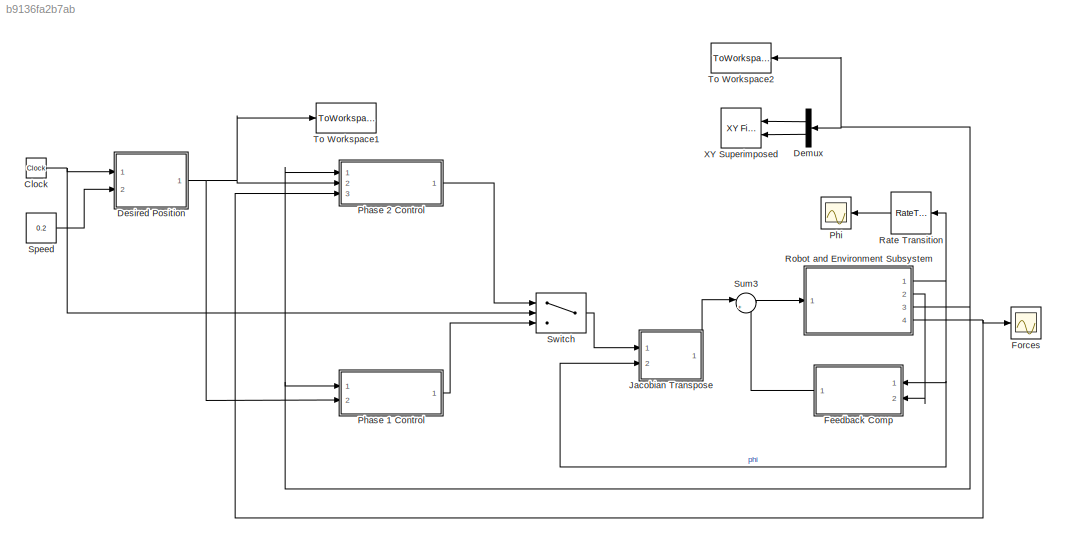
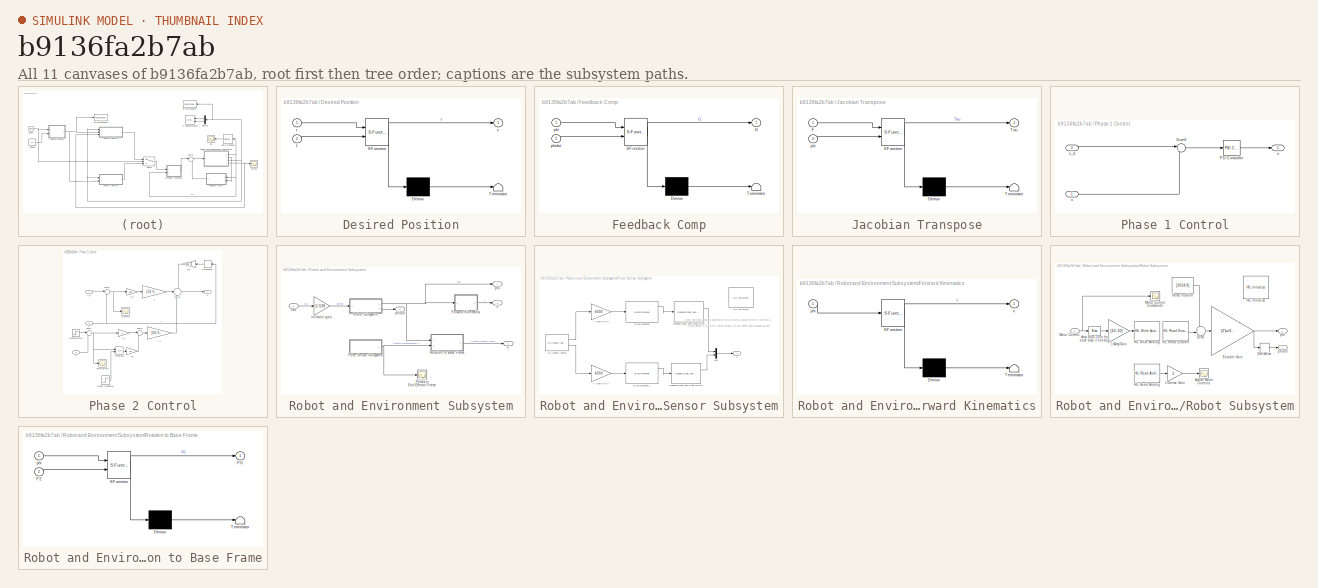
[diagram: thumbnail index - all 11 canvases of the model, root first then tree order]
MODEL slx_b9136fa2b7ab
KIND model
CONFIG AbsTol = auto
CONFIG EnableMultiTasking = on
CONFIG FixedStep = 0.002
CONFIG MaxStep = auto
CONFIG MinStep = auto
CONFIG RelTol = 1e-3
CONFIG SampleTimeConstraint = Unconstrained
CONFIG Solver = ode1
CONFIG SolverName = ode1
CONFIG StartTime = 0.0
CONFIG StopTime = 10
BLOCK [Clock] Clock
BLOCK [Demux] Demux
  DisplayOption = bar
  Outputs = 2
  Ports = [1, 2]
BLOCK [SubSystem] Desired Position
  ErrorFcn = Stateflow.Translate.translate
  PermitHierarchicalResolution = ExplicitOnly
  Ports = [2, 1]
  RequestExecContextInheritance = off
  SFBlockType = MATLAB Function
  TreatAsAtomicUnit = on
BLOCK [Demux] Desired Position/ Demux 
  Outputs = 1
  Ports = [1, 1]
BLOCK [S-Function] Desired Position/ SFunction 
  EnableBusSupport = on
  FunctionName = sf_sfun
  PortCounts = [2 2]
  Ports = [2, 2]
  SFcnIsStateOwnerBlock = off
  SFunctionDeploymentMode = off
  Tag = Stateflow S-Function hybrid_pi_control 1
BLOCK [Terminator] Desired Position/ Terminator 
BLOCK [Inport] Desired Position/f
  IconDisplay = Port number
  Port = 2
BLOCK [Inport] Desired Position/t
  IconDisplay = Port number
BLOCK [Outport] Desired Position/x
  IconDisplay = Port number
BLOCK [SubSystem] Feedback Comp
  ErrorFcn = Stateflow.Translate.translate
  PermitHierarchicalResolution = ExplicitOnly
  Ports = [2, 1]
  RequestExecContextInheritance = off
  SFBlockType = MATLAB Function
  TreatAsAtomicUnit = on
BLOCK [Demux] Feedback Comp/ Demux 
  Outputs = 1
  Ports = [1, 1]
BLOCK [S-Function] Feedback Comp/ SFunction 
  EnableBusSupport = on
  FunctionName = sf_sfun
  PortCounts = [2 2]
  Ports = [2, 2]
  SFcnIsStateOwnerBlock = off
  SFunctionDeploymentMode = off
  Tag = Stateflow S-Function hybrid_pi_control 4
BLOCK [Terminator] Feedback Comp/ Terminator 
BLOCK [Outport] Feedback Comp/G
  IconDisplay = Port number
BLOCK [Inport] Feedback Comp/phi
  IconDisplay = Port number
BLOCK [Inport] Feedback Comp/phidot
  IconDisplay = Port number
  Port = 2
BLOCK [Scope] Forces
  Floating = off
  NumInputPorts = 1
  Ports = [1]
  ScopeSpecificationString = Simulink.scopes.TimeScopeBlockCfg('CurrentConfiguration', extmgr.ConfigurationSet(extmgr.Configuration('Core','General UI',true),extmgr.Configuration('Core','Source UI',true),extmgr.Configuration('Sources','WiredSimulink',true,'DataLoggingVariableName','F','DataLogging',true,'DataLoggingDecimateData',true,'DataLoggingDecimation','1','DataLoggingSaveFormat','Array'),extmgr.Configuration('Visuals','...<+1617ch>
BLOCK [SubSystem] Jacobian Transpose
  ErrorFcn = Stateflow.Translate.translate
  PermitHierarchicalResolution = ExplicitOnly
  Ports = [2, 1]
  RequestExecContextInheritance = off
  SFBlockType = MATLAB Function
  TreatAsAtomicUnit = on
BLOCK [Demux] Jacobian Transpose/ Demux 
  Outputs = 1
  Ports = [1, 1]
BLOCK [S-Function] Jacobian Transpose/ SFunction 
  EnableBusSupport = on
  FunctionName = sf_sfun
  PortCounts = [2 2]
  Ports = [2, 2]
  SFcnIsStateOwnerBlock = off
  SFunctionDeploymentMode = off
  Tag = Stateflow S-Function hybrid_pi_control 6
BLOCK [Terminator] Jacobian Transpose/ Terminator 
BLOCK [Inport] Jacobian Transpose/F
  IconDisplay = Port number
BLOCK [Outport] Jacobian Transpose/Tau
  IconDisplay = Port number
BLOCK [Inport] Jacobian Transpose/phi
  IconDisplay = Port number
  Port = 2
BLOCK [SubSystem] Phase 1 Control
  AttributesFormatString = Position Control to get from home position to benchtop\nduring t<2
  Ports = [2, 1]
  RequestExecContextInheritance = off
BLOCK [Reference] Phase 1 Control/PD Controller  REF=simulink/Continuous/PID Controller
  AttributesFormatString = 'PGain='%<P>\n'DGain='%<D>
  Ports = [1, 1]
  SourceBlock = simulink/Continuous/PID Controller
  SourceProductBaseCode = SL
  SourceProductName = Simulink
  SourceType = PID 1dof
BLOCK [Sum] Phase 1 Control/Sum2
  IconShape = round
  InputSameDT = off
  Inputs = |+-
  OutDataTypeStr = Inherit: Inherit via internal rule
  Ports = [2, 1]
  SaturateOnIntegerOverflow = off
BLOCK [Outport] Phase 1 Control/u
  IconDisplay = Port number
BLOCK [Inport] Phase 1 Control/x
  IconDisplay = Port number
BLOCK [Inport] Phase 1 Control/x_d
  IconDisplay = Port number
  Port = 2
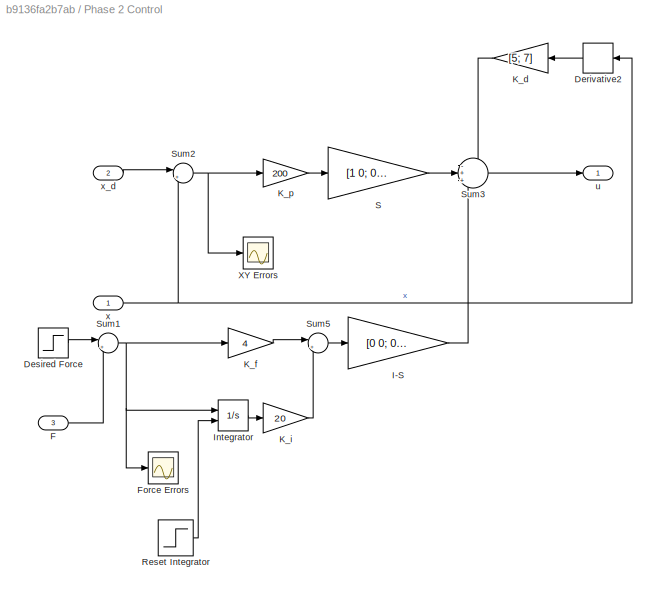
BLOCK [SubSystem] Phase 2 Control
  AttributesFormatString = For doing force/position control on benchtop\nduring t>2
  Ports = [3, 1]
  RequestExecContextInheritance = off
BLOCK [Gain] Phase 2 Control/ K_p
  Gain = 200
  OutDataTypeStr = Inherit: Inherit via internal rule
  ParamDataTypeStr = Inherit: Inherit via internal rule
  SaturateOnIntegerOverflow = off
BLOCK [Derivative] Phase 2 Control/Derivative2
BLOCK [Step] Phase 2 Control/Desired Force
  After = [0;-1]
  AttributesFormatString = F=%<After>\n@time>%<Time>
  SampleTime = 0
  Time = 2
BLOCK [Inport] Phase 2 Control/F
  IconDisplay = Port number
  Port = 3
BLOCK [Scope] Phase 2 Control/Force Errors
  Floating = off
  NumInputPorts = 1
  Ports = [1]
  ScopeSpecificationString = Simulink.scopes.TimeScopeBlockCfg('CurrentConfiguration', extmgr.ConfigurationSet(extmgr.Configuration('Core','General UI',true),extmgr.Configuration('Core','Source UI',true),extmgr.Configuration('Sources','WiredSimulink',true,'DataLoggingVariableName','ForceErrors','DataLogging',true,'DataLoggingSaveFormat','StructureWithTime'),extmgr.Configuration('Visuals','Time Domain',true,'SerializedDisplays...<+1434ch>
BLOCK [Gain] Phase 2 Control/I-S
  Gain = [0 0; 0 1]
  Multiplication = Matrix(K*u)
  OutDataTypeStr = Inherit: Inherit via internal rule
  ParamDataTypeStr = Inherit: Inherit via internal rule
  SaturateOnIntegerOverflow = off
BLOCK [Integrator] Phase 2 Control/Integrator
  ExternalReset = rising
  Ports = [2, 1]
BLOCK [Gain] Phase 2 Control/K_d
  Gain = [5; 7]
  OutDataTypeStr = Inherit: Inherit via internal rule
  ParamDataTypeStr = Inherit: Inherit via internal rule
  SaturateOnIntegerOverflow = off
BLOCK [Gain] Phase 2 Control/K_f
  Gain = 4
  OutDataTypeStr = Inherit: Inherit via internal rule
  ParamDataTypeStr = Inherit: Inherit via internal rule
  SaturateOnIntegerOverflow = off
BLOCK [Gain] Phase 2 Control/K_i
  Gain = 20
  OutDataTypeStr = Inherit: Inherit via internal rule
  ParamDataTypeStr = Inherit: Inherit via internal rule
  SaturateOnIntegerOverflow = off
BLOCK [Step] Phase 2 Control/Reset Integrator
  AttributesFormatString = @time=%<Time>
  SampleTime = 0
  Time = 2
BLOCK [Gain] Phase 2 Control/S
  Gain = [1 0; 0 0]
  Multiplication = Matrix(K*u)
  OutDataTypeStr = Inherit: Inherit via internal rule
  ParamDataTypeStr = Inherit: Inherit via internal rule
  SaturateOnIntegerOverflow = off
BLOCK [Sum] Phase 2 Control/Sum1
  IconShape = round
  InputSameDT = off
  Inputs = |+-
  OutDataTypeStr = Inherit: Inherit via internal rule
  Ports = [2, 1]
  SaturateOnIntegerOverflow = off
BLOCK [Sum] Phase 2 Control/Sum2
  IconShape = round
  InputSameDT = off
  Inputs = |+-
  OutDataTypeStr = Inherit: Inherit via internal rule
  Ports = [2, 1]
  SaturateOnIntegerOverflow = off
BLOCK [Sum] Phase 2 Control/Sum3
  IconShape = round
  InputSameDT = off
  Inputs = -++
  OutDataTypeStr = Inherit: Inherit via internal rule
  Ports = [3, 1]
  SaturateOnIntegerOverflow = off
BLOCK [Sum] Phase 2 Control/Sum5
  IconShape = round
  InputSameDT = off
  Inputs = |++
  OutDataTypeStr = Inherit: Inherit via internal rule
  Ports = [2, 1]
  SaturateOnIntegerOverflow = off
BLOCK [Scope] Phase 2 Control/XY Errors
  Floating = off
  NumInputPorts = 1
  Ports = [1]
  ScopeSpecificationString = Simulink.scopes.TimeScopeBlockCfg('CurrentConfiguration', extmgr.ConfigurationSet(extmgr.Configuration('Core','General UI',true),extmgr.Configuration('Core','Source UI',true),extmgr.Configuration('Sources','WiredSimulink',true,'DataLoggingVariableName','XYErrors','DataLogging',true,'DataLoggingSaveFormat','StructureWithTime'),extmgr.Configuration('Visuals','Time Domain',true,'SerializedDisplays',{...<+1435ch>
BLOCK [Outport] Phase 2 Control/u
  IconDisplay = Port number
BLOCK [Inport] Phase 2 Control/x
  IconDisplay = Port number
BLOCK [Inport] Phase 2 Control/x_d
  IconDisplay = Port number
  Port = 2
BLOCK [Scope] Phi
  AttributesFormatString = SampleTime =%<SampleTime>
  Floating = off
  NumInputPorts = 1
  Ports = [1]
  ScopeSpecificationString = Simulink.scopes.TimeScopeBlockCfg('CurrentConfiguration', extmgr.ConfigurationSet(extmgr.Configuration('Core','General UI',true),extmgr.Configuration('Core','Source UI',true),extmgr.Configuration('Sources','WiredSimulink',true,'DataLoggingVariableName','ScopeData3','DataLoggingSaveFormat','StructureWithTime','DataLoggingDecimation','10','DataLoggingDecimateData',true,'SampleTime','0.02'),extmgr.Co...<+1717ch>
BLOCK [RateTransition] Rate Transition
  OutPortSampleTime = 0.05
  OutPortSampleTimeMultiple = 10
  OutPortSampleTimeOpt = Inherit
BLOCK [SubSystem] Robot and Environment Subsystem
  Ports = [1, 4]
  RequestExecContextInheritance = off
BLOCK [Outport] Robot and Environment Subsystem/F
  IconDisplay = Port number
  Port = 4
BLOCK [SubSystem] Robot and Environment Subsystem/Force Sensor Subsystem
  Ports = [0, 1]
  RequestExecContextInheritance = off
BLOCK [Reference] Robot and Environment Subsystem/Force Sensor Subsystem/Bias Removal  REF=quarc_library/Discrete/Bias Removal
  Ports = [1, 3]
  SourceBlock = quarc_library/Discrete/Bias Removal
  SourceProductName = QUARC Targets
  SourceType = Bias Removal
BLOCK [Reference] Robot and Environment Subsystem/Force Sensor Subsystem/Bias Removal1  REF=quarc_library/Discrete/Bias Removal
  Ports = [1, 3]
  SourceBlock = quarc_library/Discrete/Bias Removal
  SourceProductName = QUARC Targets
  SourceType = Bias Removal
BLOCK [Outport] Robot and Environment Subsystem/Force Sensor Subsystem/F
  IconDisplay = Port number
BLOCK [Reference] Robot and Environment Subsystem/Force Sensor Subsystem/HIL Initialize  REF=quarc_library/Data Acquisition/Generic/Configuration/HIL Initialize
  AttributesFormatString = %<object_name> (%<board_type>-%<board_number>)
  Ports = []
  Priority = -99
  SourceBlock = quarc_library/Data Acquisition/Generic/Configuration/HIL Initialize
  SourceProductName = QUARC Targets
  SourceType = HIL Initialize
  UserDataPersistent = on
BLOCK [Reference] Robot and Environment Subsystem/Force Sensor Subsystem/HIL Read Analog  REF=quarc_library/Data Acquisition/Generic/Immediate I//O/HIL Read Analog
  AttributesFormatString = (%<object_name>)
  Ports = [0, 2]
  SourceBlock = quarc_library/Data Acquisition/Generic/Immediate I//O/HIL Read Analog
  SourceProductName = QUARC Targets
  SourceType = HIL Read Analog
  UserDataPersistent = on
BLOCK [Mux] Robot and Environment Subsystem/Force Sensor Subsystem/Mux
  DisplayOption = bar
  Inputs = 2
  Ports = [2, 1]
BLOCK [Reference] Robot and Environment Subsystem/Force Sensor Subsystem/Second-Order Low-Pass Filter  REF=quarc_library/Continuous/Second-Order
Low-Pass Filter
  Ports = [1, 2]
  SourceBlock = quarc_library/Continuous/Second-Order\nLow-Pass Filter
  SourceProductName = QUARC Targets
  SourceType = Second-Order Low-Pass Filter
BLOCK [Reference] Robot and Environment Subsystem/Force Sensor Subsystem/Second-Order Low-Pass Filter1  REF=quarc_library/Continuous/Second-Order
Low-Pass Filter
  Ports = [1, 2]
  SourceBlock = quarc_library/Continuous/Second-Order\nLow-Pass Filter
  SourceProductName = QUARC Targets
  SourceType = Second-Order Low-Pass Filter
BLOCK [Gain] Robot and Environment Subsystem/Force Sensor Subsystem/X Gain (N//V)
  Gain = 4000
  OutDataTypeStr = Inherit: Inherit via internal rule
  ParamDataTypeStr = Inherit: Inherit via internal rule
  SaturateOnIntegerOverflow = off
BLOCK [Gain] Robot and Environment Subsystem/Force Sensor Subsystem/Y Gain (N//V)
  Gain = 4000
  OutDataTypeStr = Inherit: Inherit via internal rule
  ParamDataTypeStr = Inherit: Inherit via internal rule
  SaturateOnIntegerOverflow = off
BLOCK [Scope] Robot and Environment Subsystem/Forces in End-Effector Frame
  Floating = off
  NumInputPorts = 1
  Ports = [1]
  ScopeSpecificationString = Simulink.scopes.TimeScopeBlockCfg('CurrentConfiguration', extmgr.ConfigurationSet(extmgr.Configuration('Core','General UI',true),extmgr.Configuration('Core','Source UI',true),extmgr.Configuration('Sources','WiredSimulink',true,'DataLoggingVariableName','ScopeData1','DataLoggingLimitDataPoints',true,'DataLoggingSaveFormat','Array','DataLoggingDecimation','1','DataLoggingDecimateData',true),extmgr.C...<+165ch>
BLOCK [SubSystem] Robot and Environment Subsystem/Forward Kinematics
  ErrorFcn = Stateflow.Translate.translate
  PermitHierarchicalResolution = ExplicitOnly
  Ports = [1, 1]
  RequestExecContextInheritance = off
  SFBlockType = MATLAB Function
  TreatAsAtomicUnit = on
BLOCK [Demux] Robot and Environment Subsystem/Forward Kinematics/ Demux 
  Outputs = 1
  Ports = [1, 1]
BLOCK [S-Function] Robot and Environment Subsystem/Forward Kinematics/ SFunction 
  EnableBusSupport = on
  FunctionName = sf_sfun
  PortCounts = [1 2]
  Ports = [1, 2]
  SFcnIsStateOwnerBlock = off
  SFunctionDeploymentMode = off
  Tag = Stateflow S-Function hybrid_pi_control 9
BLOCK [Terminator] Robot and Environment Subsystem/Forward Kinematics/ Terminator 
BLOCK [Inport] Robot and Environment Subsystem/Forward Kinematics/phi
  IconDisplay = Port number
BLOCK [Outport] Robot and Environment Subsystem/Forward Kinematics/x
  IconDisplay = Port number
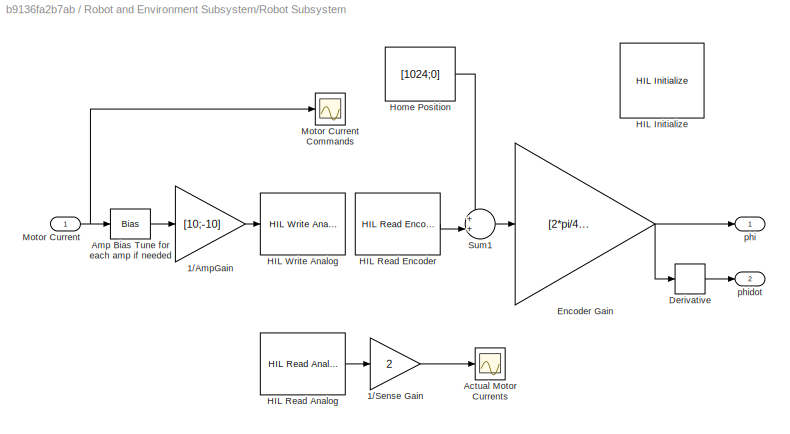
BLOCK [SubSystem] Robot and Environment Subsystem/Robot Subsystem
  Ports = [1, 2]
  RequestExecContextInheritance = off
BLOCK [Gain] Robot and Environment Subsystem/Robot Subsystem/1//AmpGain
  Gain = [10;-10]
  OutDataTypeStr = Inherit: Inherit via internal rule
  ParamDataTypeStr = Inherit: Inherit via internal rule
  SaturateOnIntegerOverflow = off
BLOCK [Gain] Robot and Environment Subsystem/Robot Subsystem/1//Sense Gain
  Gain = 2
  OutDataTypeStr = Inherit: Inherit via internal rule
  ParamDataTypeStr = Inherit: Inherit via internal rule
  SaturateOnIntegerOverflow = off
BLOCK [Scope] Robot and Environment Subsystem/Robot Subsystem/Actual Motor Currents
  Floating = off
  NumInputPorts = 1
  Ports = [1]
  ScopeSpecificationString = Simulink.scopes.TimeScopeBlockCfg('CurrentConfiguration', extmgr.ConfigurationSet(extmgr.Configuration('Core','General UI',true),extmgr.Configuration('Core','Source UI',true),extmgr.Configuration('Sources','WiredSimulink',true,'DataLoggingSaveFormat','StructureWithTime','DataLoggingDecimation','1','DataLoggingDecimateData',true),extmgr.Configuration('Visuals','Time Domain',true,'SerializedDisplays...<+1695ch>
BLOCK [Bias] Robot and Environment Subsystem/Robot Subsystem/Amp Bias Tune for each amp if needed
  Bias = [-0.035; 0.039]
  SaturateOnIntegerOverflow = off
BLOCK [Derivative] Robot and Environment Subsystem/Robot Subsystem/Derivative
BLOCK [Gain] Robot and Environment Subsystem/Robot Subsystem/Encoder Gain
  Gain = [2*pi/4096 ; -2*pi/4096]
  OutDataTypeStr = Inherit: Inherit via internal rule
  ParamDataTypeStr = Inherit: Inherit via internal rule
  SaturateOnIntegerOverflow = off
BLOCK [Reference] Robot and Environment Subsystem/Robot Subsystem/HIL Initialize  REF=quarc_library/Data Acquisition/Generic/Configuration/HIL Initialize
  AttributesFormatString = %<object_name> (%<board_type>-%<board_number>)
  Ports = []
  SourceBlock = quarc_library/Data Acquisition/Generic/Configuration/HIL Initialize
  SourceProductName = QUARC Targets
  SourceType = HIL Initialize
  UserDataPersistent = on
BLOCK [Reference] Robot and Environment Subsystem/Robot Subsystem/HIL Read Analog  REF=quarc_library/Data Acquisition/Generic/Immediate I//O/HIL Read Analog
  AttributesFormatString = (%<object_name>)
  Ports = [0, 1]
  SourceBlock = quarc_library/Data Acquisition/Generic/Immediate I//O/HIL Read Analog
  SourceProductName = QUARC Targets
  SourceType = HIL Read Analog
  UserDataPersistent = on
BLOCK [Reference] Robot and Environment Subsystem/Robot Subsystem/HIL Read Encoder  REF=quarc_library/Data Acquisition/Generic/Immediate I//O/HIL Read Encoder
  AttributesFormatString = (%<object_name>)
  Ports = [0, 1]
  SourceBlock = quarc_library/Data Acquisition/Generic/Immediate I//O/HIL Read Encoder
  SourceProductName = QUARC Targets
  SourceType = HIL Read Encoder
  UserDataPersistent = on
BLOCK [Reference] Robot and Environment Subsystem/Robot Subsystem/HIL Write Analog  REF=quarc_library/Data Acquisition/Generic/Immediate I//O/HIL Write Analog
  AttributesFormatString = (%<object_name>)
  Ports = [1]
  SourceBlock = quarc_library/Data Acquisition/Generic/Immediate I//O/HIL Write Analog
  SourceProductName = QUARC Targets
  SourceType = HIL Write Analog
  UserDataPersistent = on
BLOCK [Constant] Robot and Environment Subsystem/Robot Subsystem/Home Position
  Value = [1024;0]
  VectorParams1D = off
BLOCK [Inport] Robot and Environment Subsystem/Robot Subsystem/Motor Current
  IconDisplay = Port number
BLOCK [Scope] Robot and Environment Subsystem/Robot Subsystem/Motor Current Commands
  Floating = off
  NumInputPorts = 1
  Ports = [1]
  ScopeSpecificationString = Simulink.scopes.TimeScopeBlockCfg('CurrentConfiguration', extmgr.ConfigurationSet(extmgr.Configuration('Core','General UI',true),extmgr.Configuration('Core','Source UI',true),extmgr.Configuration('Sources','WiredSimulink',true,'DataLoggingVariableName','ScopeData1','DataLoggingSaveFormat','StructureWithTime','DataLoggingDecimation','1','DataLoggingDecimateData',true),extmgr.Configuration('Visuals'...<+1708ch>
BLOCK [Sum] Robot and Environment Subsystem/Robot Subsystem/Sum1
  IconShape = round
  InputSameDT = off
  Inputs = ++|
  OutDataTypeStr = Inherit: Inherit via internal rule
  Ports = [2, 1]
  SaturateOnIntegerOverflow = off
BLOCK [Outport] Robot and Environment Subsystem/Robot Subsystem/phi
  IconDisplay = Port number
BLOCK [Outport] Robot and Environment Subsystem/Robot Subsystem/phidot
  IconDisplay = Port number
  Port = 2
BLOCK [SubSystem] Robot and Environment Subsystem/Rotation to Base Frame
  ErrorFcn = Stateflow.Translate.translate
  PermitHierarchicalResolution = ExplicitOnly
  Ports = [2, 1]
  RequestExecContextInheritance = off
  SFBlockType = MATLAB Function
  TreatAsAtomicUnit = on
BLOCK [Demux] Robot and Environment Subsystem/Rotation to Base Frame/ Demux 
  Outputs = 1
  Ports = [1, 1]
BLOCK [S-Function] Robot and Environment Subsystem/Rotation to Base Frame/ SFunction 
  EnableBusSupport = on
  FunctionName = sf_sfun
  PortCounts = [2 2]
  Ports = [2, 2]
  SFcnIsStateOwnerBlock = off
  SFunctionDeploymentMode = off
  Tag = Stateflow S-Function hybrid_pi_control 10
BLOCK [Terminator] Robot and Environment Subsystem/Rotation to Base Frame/ Terminator 
BLOCK [Outport] Robot and Environment Subsystem/Rotation to Base Frame/F0
  IconDisplay = Port number
BLOCK [Inport] Robot and Environment Subsystem/Rotation to Base Frame/F2
  IconDisplay = Port number
  Port = 2
BLOCK [Inport] Robot and Environment Subsystem/Rotation to Base Frame/phi
  IconDisplay = Port number
BLOCK [Inport] Robot and Environment Subsystem/Tau
  IconDisplay = Port number
BLOCK [Gain] Robot and Environment Subsystem/inv motor gain
  Gain = 1/.539
  OutDataTypeStr = Inherit: Inherit via internal rule
  ParamDataTypeStr = Inherit: Inherit via internal rule
  SaturateOnIntegerOverflow = off
BLOCK [Outport] Robot and Environment Subsystem/phi
  IconDisplay = Port number
BLOCK [Outport] Robot and Environment Subsystem/phidot
  IconDisplay = Port number
  Port = 2
BLOCK [Outport] Robot and Environment Subsystem/x
  IconDisplay = Port number
  Port = 3
BLOCK [Constant] Speed
  AttributesFormatString = (strokes/sec)
  Value = 0.2
BLOCK [Sum] Sum3
  IconShape = round
  InputSameDT = off
  Inputs = |++
  OutDataTypeStr = Inherit: Inherit via internal rule
  Ports = [2, 1]
  SaturateOnIntegerOverflow = off
BLOCK [Switch] Switch
  Criteria = u2 > Threshold
  InputSameDT = off
  SaturateOnIntegerOverflow = off
  Threshold = 2
BLOCK [ToWorkspace] To Workspace1
  MaxDataPoints = inf
  Ports = [1]
  SampleTime = -1
  Save2DSignal = 3-D array (concatenate along third dimension)
  VariableName = xy_d
BLOCK [ToWorkspace] To Workspace2
  MaxDataPoints = inf
  Ports = [1]
  SampleTime = -1
  Save2DSignal = 3-D array (concatenate along third dimension)
  VariableName = xy
BLOCK [Reference] XY Superimposed  REF=quarc_library/Sinks/Figures/XY Figure
  Ports = [2]
  SourceBlock = quarc_library/Sinks/Figures/XY Figure
  SourceProductName = QUARC Targets
  SourceType = XY Figure
ANNOTATION Robot and Environment Subsystem/Force Sensor Subsystem: Note: The force sensor is powered by the +5 Digital Output on the NI terminal board. Do not power it with the Analog Outputs, as they cannot source enough current.
NET Clock:1 -> Desired Position:1, Switch:2
LINE Demux:1 -> XY Superimposed:1
LINE Demux:2 -> XY Superimposed:2
NET Desired Position:1 -> Phase 1 Control:2, Phase 2 Control:2, To Workspace1:1
LINE Feedback Comp:1 -> Sum3:2
LINE Jacobian Transpose:1 -> Sum3:1
LINE Phase 1 Control/PD Controller:1 -> Phase 1 Control/u:1
LINE Phase 1 Control/Sum2:1 -> Phase 1 Control/PD Controller:1
LINE Phase 1 Control/x:1 -> Phase 1 Control/Sum2:2
LINE Phase 1 Control/x_d:1 -> Phase 1 Control/Sum2:1
LINE Phase 1 Control:1 -> Switch:3
LINE Phase 2 Control/ K_p:1 -> Phase 2 Control/S:1
LINE Phase 2 Control/Derivative2:1 -> Phase 2 Control/K_d:1
LINE Phase 2 Control/Desired Force:1 -> Phase 2 Control/Sum1:1
LINE Phase 2 Control/F:1 -> Phase 2 Control/Sum1:2
LINE Phase 2 Control/I-S:1 -> Phase 2 Control/Sum3:3
LINE Phase 2 Control/Integrator:1 -> Phase 2 Control/K_i:1
LINE Phase 2 Control/K_d:1 -> Phase 2 Control/Sum3:1
LINE Phase 2 Control/K_f:1 -> Phase 2 Control/Sum5:1
LINE Phase 2 Control/K_i:1 -> Phase 2 Control/Sum5:2
LINE Phase 2 Control/Reset Integrator:1 -> Phase 2 Control/Integrator:2
LINE Phase 2 Control/S:1 -> Phase 2 Control/Sum3:2
NET Phase 2 Control/Sum1:1 -> Phase 2 Control/Force Errors:1, Phase 2 Control/Integrator:1, Phase 2 Control/K_f:1
NET Phase 2 Control/Sum2:1 -> Phase 2 Control/ K_p:1, Phase 2 Control/XY Errors:1
LINE Phase 2 Control/Sum3:1 -> Phase 2 Control/u:1
LINE Phase 2 Control/Sum5:1 -> Phase 2 Control/I-S:1
NET Phase 2 Control/x:1 -> Phase 2 Control/Derivative2:1, Phase 2 Control/Sum2:2
LINE Phase 2 Control/x_d:1 -> Phase 2 Control/Sum2:1
LINE Phase 2 Control:1 -> Switch:1
LINE Rate Transition:1 -> Phi:1
LINE Robot and Environment Subsystem/Force Sensor Subsystem/Bias Removal1:1 -> Robot and Environment Subsystem/Force Sensor Subsystem/Second-Order Low-Pass Filter1:1
LINE Robot and Environment Subsystem/Force Sensor Subsystem/Bias Removal:1 -> Robot and Environment Subsystem/Force Sensor Subsystem/Second-Order Low-Pass Filter:1
LINE Robot and Environment Subsystem/Force Sensor Subsystem/HIL Read Analog:1 -> Robot and Environment Subsystem/Force Sensor Subsystem/X Gain (N//V):1
LINE Robot and Environment Subsystem/Force Sensor Subsystem/HIL Read Analog:2 -> Robot and Environment Subsystem/Force Sensor Subsystem/Y Gain (N//V):1
LINE Robot and Environment Subsystem/Force Sensor Subsystem/Mux:1 -> Robot and Environment Subsystem/Force Sensor Subsystem/F:1
LINE Robot and Environment Subsystem/Force Sensor Subsystem/Second-Order Low-Pass Filter1:1 -> Robot and Environment Subsystem/Force Sensor Subsystem/Mux:2
LINE Robot and Environment Subsystem/Force Sensor Subsystem/Second-Order Low-Pass Filter:1 -> Robot and Environment Subsystem/Force Sensor Subsystem/Mux:1
LINE Robot and Environment Subsystem/Force Sensor Subsystem/X Gain (N//V):1 -> Robot and Environment Subsystem/Force Sensor Subsystem/Bias Removal:1
LINE Robot and Environment Subsystem/Force Sensor Subsystem/Y Gain (N//V):1 -> Robot and Environment Subsystem/Force Sensor Subsystem/Bias Removal1:1
NET Robot and Environment Subsystem/Force Sensor Subsystem:1 -> Robot and Environment Subsystem/Forces in End-Effector Frame:1, Robot and Environment Subsystem/Rotation to Base Frame:2
LINE Robot and Environment Subsystem/Forward Kinematics:1 -> Robot and Environment Subsystem/x:1
LINE Robot and Environment Subsystem/Robot Subsystem/1//AmpGain:1 -> Robot and Environment Subsystem/Robot Subsystem/HIL Write Analog:1
LINE Robot and Environment Subsystem/Robot Subsystem/1//Sense Gain:1 -> Robot and Environment Subsystem/Robot Subsystem/Actual Motor Currents:1
LINE Robot and Environment Subsystem/Robot Subsystem/Amp Bias Tune for each amp if needed:1 -> Robot and Environment Subsystem/Robot Subsystem/1//AmpGain:1
LINE Robot and Environment Subsystem/Robot Subsystem/Derivative:1 -> Robot and Environment Subsystem/Robot Subsystem/phidot:1
NET Robot and Environment Subsystem/Robot Subsystem/Encoder Gain:1 -> Robot and Environment Subsystem/Robot Subsystem/Derivative:1, Robot and Environment Subsystem/Robot Subsystem/phi:1
LINE Robot and Environment Subsystem/Robot Subsystem/HIL Read Analog:1 -> Robot and Environment Subsystem/Robot Subsystem/1//Sense Gain:1
LINE Robot and Environment Subsystem/Robot Subsystem/HIL Read Encoder:1 -> Robot and Environment Subsystem/Robot Subsystem/Sum1:2
LINE Robot and Environment Subsystem/Robot Subsystem/Home Position:1 -> Robot and Environment Subsystem/Robot Subsystem/Sum1:1
NET Robot and Environment Subsystem/Robot Subsystem/Motor Current:1 -> Robot and Environment Subsystem/Robot Subsystem/Amp Bias Tune for each amp if needed:1, Robot and Environment Subsystem/Robot Subsystem/Motor Current Commands:1
LINE Robot and Environment Subsystem/Robot Subsystem/Sum1:1 -> Robot and Environment Subsystem/Robot Subsystem/Encoder Gain:1
NET Robot and Environment Subsystem/Robot Subsystem:1 -> Robot and Environment Subsystem/Forward Kinematics:1, Robot and Environment Subsystem/Rotation to Base Frame:1, Robot and Environment Subsystem/phi:1
LINE Robot and Environment Subsystem/Robot Subsystem:2 -> Robot and Environment Subsystem/phidot:1
LINE Robot and Environment Subsystem/Rotation to Base Frame:1 -> Robot and Environment Subsystem/F:1
LINE Robot and Environment Subsystem/Tau:1 -> Robot and Environment Subsystem/inv motor gain:1
LINE Robot and Environment Subsystem/inv motor gain:1 -> Robot and Environment Subsystem/Robot Subsystem:1
NET Robot and Environment Subsystem:1 -> Feedback Comp:1, Jacobian Transpose:2, Rate Transition:1
LINE Robot and Environment Subsystem:2 -> Feedback Comp:2
NET Robot and Environment Subsystem:3 -> Demux:1, Phase 1 Control:1, Phase 2 Control:1, To Workspace2:1
NET Robot and Environment Subsystem:4 -> Forces:1, Phase 2 Control:3
LINE Speed:1 -> Desired Position:2
LINE Sum3:1 -> Robot and Environment Subsystem:1
LINE Switch:1 -> Jacobian Transpose:1
note: NET lines group one-source signal fan-out (src -> all destinations, sorted); 1:1 wires keep LINE
CHART Desired Position states=1 transitions=1
  STATE_LABEL 'eML_blk_kernel()'
  STATE_LABEL 'SCRIPT:\nfunction x = fcn(t,f)\n% This block supports an embeddable subset of the MATLAB language.\n% See the help menu for details. \nx = [0;0];\n\nh = -0.06; % wall height\nL = 0.07; % force sensor length\n\nif t<2 % Phase 1 will be in control during first 2 seconds to move from home position to point on benchtop\n        x(1) = 0.15 + L + 0.0375*(1 - cos(pi*t/2));\n        x(2) = 0.15 - (0.15-h)/2*(1 - co...<+268ch>'
CHART Feedback Comp states=1 transitions=1
  STATE_LABEL 'eML_blk_kernel()'
  STATE_LABEL 'SCRIPT:\nfunction G = fcn(phi, phidot)\n% This block supports an embeddable subset of the MATLAB language.\n% See the help menu for details. \n\na1 = 0.15;  % link 1 length\na2 = 0.15;  % link 2 length\nm1 = 0.092;  % link 1 mass  \nm2 = 0.077+0.03; % link 2 mass\nr01 = 0.062; % link 1 center of mass\nr12 = 0.036+0.04; % link 2 COM\n\ng = 9.8; % gravitational constant\n\nG1 = (r01*m1+a1*m2)*g*cos(phi(1));\nG2 = ...<+54ch>'
CHART Jacobian
Transpose states=1 transitions=1
  STATE_LABEL 'eML_blk_kernel()'
  STATE_LABEL "SCRIPT:\nfunction Tau = fcn(F,phi)\n% This block supports an embeddable subset of the MATLAB language.\n% See the help menu for details. \na1=0.15;\na2=0.15;\n\nJ11 = -a1*sin(phi(1));\nJ12 = -a2*sin(phi(2));\nJ21 = a1*cos(phi(1));\nJ22 = a2*cos(phi(2));\n\nJ = [J11 J12; J21 J22];\n\nTau = J'*F;\n"
CHART Robot and Environment
Subsystem/Forward
Kinematics states=1 transitions=1
  STATE_LABEL 'eML_blk_kernel()'
  STATE_LABEL 'SCRIPT:\nfunction x = fcn(phi)\n% This block supports an embeddable subset of the MATLAB language.\n% See the help menu for details. \n\na1=0.15;\na2=0.15+0.07; %modified to include length of force sensor\nx = [0;0];\nx(1) = a1*cos(phi(1))+a2*cos(phi(2));\nx(2) = a1*sin(phi(1))+a2*sin(phi(2));\n'
CHART Robot and Environment
Subsystem/Rotation to Base Frame states=1 transitions=1
  STATE_LABEL 'eML_blk_kernel()'
  STATE_LABEL 'SCRIPT:\nfunction F0 = fcn(phi,F2)\n% This block supports an embeddable subset of the MATLAB language.\n% See the help menu for details. \n\n\n\nR = [cos(phi(2)) , -sin(phi(2));\n     sin(phi(2)) , cos(phi(2))];\n\n\nF0 = R*F2;\n'
